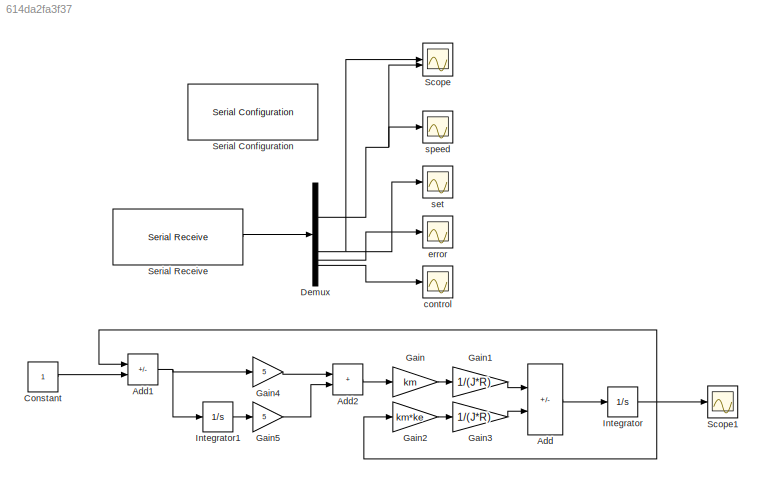
MODEL slx_614da2fa3f37
KIND model
CONFIG AbsTol = auto
CONFIG EnableMultiTasking = off
CONFIG FixedStep = auto
CONFIG MaxStep = auto
CONFIG MinStep = auto
CONFIG RelTol = 1e-9
CONFIG SampleTimeConstraint = Unconstrained
CONFIG SolverName = VariableStepAuto
CONFIG StartTime = 0.0
CONFIG StopTime = inf
BLOCK [Sum] Add
  Commented = on
  IconShape = rectangular
  Inputs = +-
BLOCK [Sum] Add1
  Commented = on
  IconShape = rectangular
  Inputs = -+
BLOCK [Sum] Add2
  Commented = on
  IconShape = rectangular
BLOCK [Constant] Constant
  Commented = on
BLOCK [Demux] Demux
BLOCK [Gain] Gain
  Commented = on
  Gain = km
BLOCK [Gain] Gain1
  Commented = on
  Gain = 1/(J*R)
BLOCK [Gain] Gain2
  Commented = on
  Gain = km*ke
BLOCK [Gain] Gain3
  Commented = on
  Gain = 1/(J*R)
BLOCK [Gain] Gain4
  Commented = on
  Gain = 5
BLOCK [Gain] Gain5
  Commented = on
  Gain = 5
BLOCK [Integrator] Integrator
  Commented = on
BLOCK [Integrator] Integrator1
  Commented = on
BLOCK [Scope] Scope
  Floating = off
  NumInputPorts = 2
  ScopeSpecificationString = Simulink.scopes.TimeScopeBlockCfg('CurrentConfiguration', extmgr.ConfigurationSet(extmgr.Configuration('Core','General UI',true),extmgr.Configuration('Core','Source UI',true),extmgr.Configuration('Sources','WiredSimulink',true,'DataLoggingVariableName','ScopeData5'),extmgr.Configuration('Visuals','Time Domain',true,'SerializedDisplays',{struct('MinYLimReal','-1100','MaxYLimReal','1100','YLabelReal...<+1538ch>
BLOCK [Scope] Scope1
  Commented = on
  Floating = off
  NumInputPorts = 1
  ScopeSpecificationString = Simulink.scopes.TimeScopeBlockCfg('CurrentConfiguration', extmgr.ConfigurationSet(extmgr.Configuration('Core','General UI',true),extmgr.Configuration('Core','Source UI',true),extmgr.Configuration('Sources','WiredSimulink',true,'DataLoggingVariableName','ScopeData1'),extmgr.Configuration('Visuals','Time Domain',true,'SerializedDisplays',{struct('MinYLimReal','-0.12494','MaxYLimReal','1.12447','YLab...<+1458ch>
BLOCK [Reference] Serial Configuration  REF=instrumentseriallib/Serial Configuration
  LibrarySourceBlock = instrumentlib/Serial Configuration
  Priority = -200000
  SourceBlock = instrumentseriallib/Serial Configuration
  SourceType = system.SerialConfiguration
BLOCK [Reference] Serial Receive  REF=instrumentseriallib/Serial Receive
  LibrarySourceBlock = instrumentlib/Serial Receive
  Priority = 1
  SourceBlock = instrumentseriallib/Serial Receive
  SourceType = system.SerialReceive
BLOCK [Scope] control
  Floating = off
  NumInputPorts = 1
  ScopeSpecificationString = Simulink.scopes.TimeScopeBlockCfg('CurrentConfiguration', extmgr.ConfigurationSet(extmgr.Configuration('Core','General UI',true),extmgr.Configuration('Core','Source UI',true),extmgr.Configuration('Sources','WiredSimulink',true,'DataLoggingVariableName','ScopeData4'),extmgr.Configuration('Visuals','Time Domain',true,'SerializedDisplays',{struct('MinYLimReal','-110','MaxYLimReal','110','YLabelReal',...<+1493ch>
BLOCK [Scope] error
  Floating = off
  NumInputPorts = 1
  ScopeSpecificationString = Simulink.scopes.TimeScopeBlockCfg('CurrentConfiguration', extmgr.ConfigurationSet(extmgr.Configuration('Core','General UI',true),extmgr.Configuration('Core','Source UI',true),extmgr.Configuration('Sources','WiredSimulink',true,'DataLoggingVariableName','ScopeData3'),extmgr.Configuration('Visuals','Time Domain',true,'SerializedDisplays',{struct('MinYLimReal','-200.00000','MaxYLimReal','200.00000','...<+1517ch>
BLOCK [Scope] set
  Floating = off
  NumInputPorts = 1
  ScopeSpecificationString = Simulink.scopes.TimeScopeBlockCfg('CurrentConfiguration', extmgr.ConfigurationSet(extmgr.Configuration('Core','General UI',true),extmgr.Configuration('Core','Source UI',true),extmgr.Configuration('Sources','WiredSimulink',true,'DataLoggingVariableName','ScopeData2'),extmgr.Configuration('Visuals','Time Domain',true,'SerializedDisplays',{struct('MinYLimReal','-1100.00000','MaxYLimReal','1100','YLab...<+1513ch>
BLOCK [Scope] speed
  Floating = off
  NumInputPorts = 1
  ScopeSpecificationString = Simulink.scopes.TimeScopeBlockCfg('CurrentConfiguration', extmgr.ConfigurationSet(extmgr.Configuration('Core','General UI',true),extmgr.Configuration('Core','Source UI',true),extmgr.Configuration('Sources','WiredSimulink',true,'DataLoggingVariableName','ScopeData1'),extmgr.Configuration('Visuals','Time Domain',true,'SerializedDisplays',{struct('MinYLimReal','-3.75','MaxYLimReal','33.75','YLabelRea...<+1488ch>
NET Add1:1 -> Gain4:1, Integrator1:1
LINE Add2:1 -> Gain:1
LINE Add:1 -> Integrator:1
LINE Constant:1 -> Add1:2
NET Demux:1 -> Scope:2, speed:1
NET Demux:2 -> Scope:1, set:1
LINE Demux:3 -> error:1
LINE Demux:4 -> control:1
LINE Gain1:1 -> Add:1
LINE Gain2:1 -> Gain3:1
LINE Gain3:1 -> Add:2
LINE Gain4:1 -> Add2:1
LINE Gain5:1 -> Add2:2
LINE Gain:1 -> Gain1:1
LINE Integrator1:1 -> Gain5:1
NET Integrator:1 -> Add1:1, Gain2:1, Scope1:1
LINE Serial Receive:1 -> Demux:1
note: NET lines group one-source signal fan-out (src -> all destinations, sorted); 1:1 wires keep LINE
